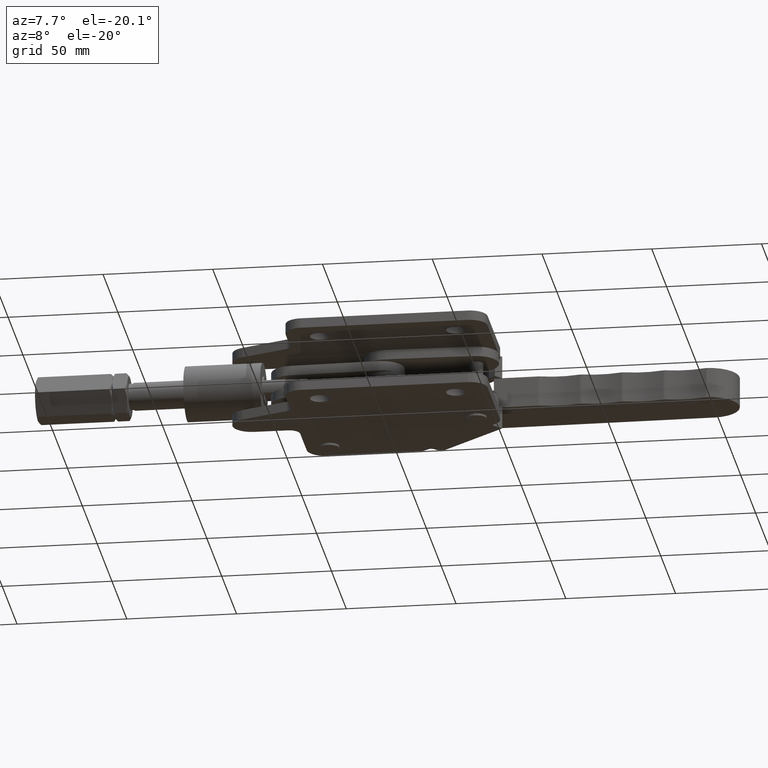
[diagram: clean part render]
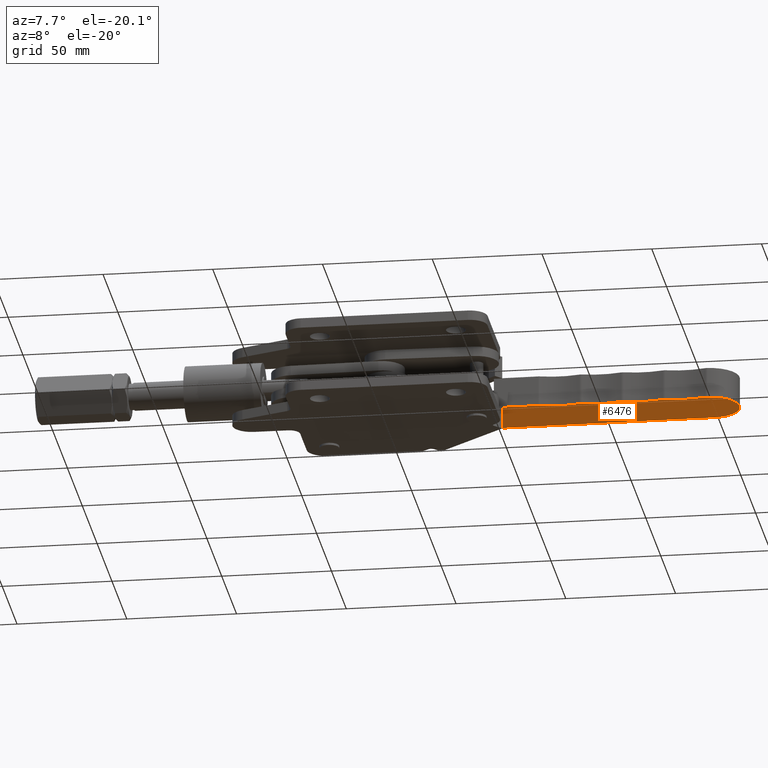
[diagram: same view with one face highlighted and labeled with its STEP entity id]
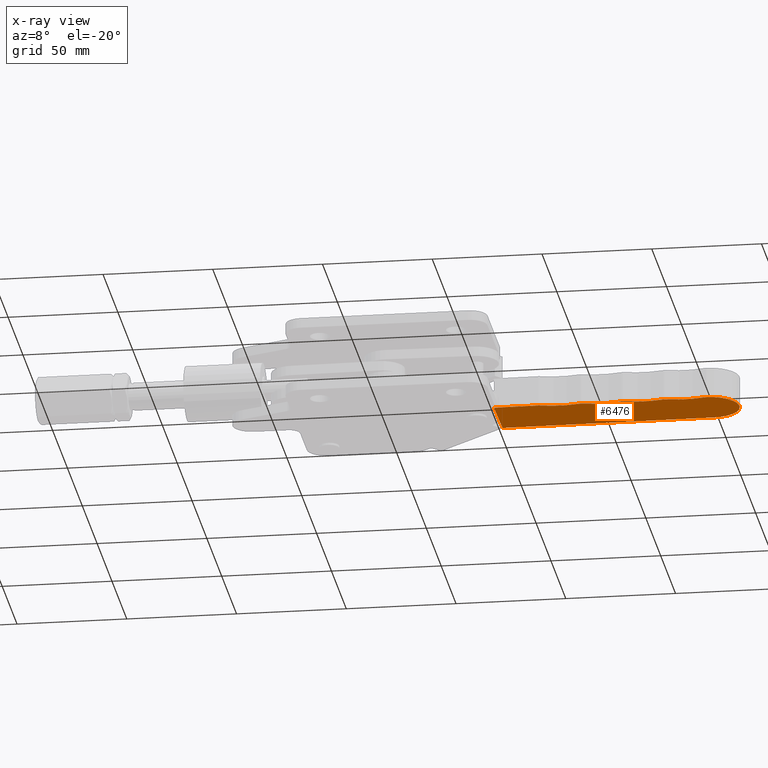
[diagram: x-ray of the same camera — body ghosted, the highlighted face saturated]
A machine part, auxiliary view. The second image highlights one B-rep face of the part: STEP entity #6476.
The next image is the same camera in x-ray: the body ghosted, the highlighted face saturated — about 0% of this face is hidden behind the body in this view.
In plain terms, the highlighted planar face has unit normal (0, 0, 1).
Its self-contained STEP definition (entity closure, byte-faithful):
#42 = VERTEX_POINT ( 'NONE', #2319 ) ;
#62 = AXIS2_PLACEMENT_3D ( 'NONE', #1163, #5013, #5044 ) ;
#107 = EDGE_CURVE ( 'NONE', #2254, #5272, #1745, .T. ) ;
#158 = EDGE_CURVE ( 'NONE', #7084, #2704, #5530, .T. ) ;
#186 = LINE ( 'NONE', #7910, #6771 ) ;
#371 = CARTESIAN_POINT ( 'NONE',  ( -5.069885523443646000, 71.95814195332458500, -24.19999999999998500 ) ) ;
#430 = DIRECTION ( 'NONE',  ( 0.9991457946206925300, 0.04132409819687534600, 0.0000000000000000000 ) ) ;
#686 = DIRECTION ( 'NONE',  ( 0.0000000000000000000, 0.0000000000000000000, 1.000000000000000000 ) ) ;
#700 = ORIENTED_EDGE ( 'NONE', *, *, #3980, .F. ) ;
#717 = EDGE_CURVE ( 'NONE', #4188, #7084, #5713, .T. ) ;
#736 = VERTEX_POINT ( 'NONE', #1936 ) ;
#807 = VERTEX_POINT ( 'NONE', #5716 ) ;
#882 = AXIS2_PLACEMENT_3D ( 'NONE', #5732, #2030, #6349 ) ;
#997 = CIRCLE ( 'NONE', #6024, 32.00000000000001400 ) ;
#1029 = EDGE_CURVE ( 'NONE', #7947, #807, #2130, .T. ) ;
#1031 = ORIENTED_EDGE ( 'NONE', *, *, #1964, .F. ) ;
#1163 = CARTESIAN_POINT ( 'NONE',  ( 27.54054772723067000, 15.74102818306557300, -24.19999999999998500 ) ) ;
#1177 = DIRECTION ( 'NONE',  ( 0.0000000000000000000, 0.0000000000000000000, 1.000000000000000000 ) ) ;
#1187 = CIRCLE ( 'NONE', #8001, 3.000000000000023500 ) ;
#1351 = CARTESIAN_POINT ( 'NONE',  ( 46.26508374010705900, 16.51546427542865900, -24.19999999999998500 ) ) ;
#1451 = CARTESIAN_POINT ( 'NONE',  ( 92.14929663985753900, 49.09104235534283600, -24.19999999999998500 ) ) ;
#1540 = EDGE_CURVE ( 'NONE', #736, #2254, #5382, .T. ) ;
#1570 = CARTESIAN_POINT ( 'NONE',  ( 73.47680954604851400, 51.39212259830702600, -24.19999999999998500 ) ) ;
#1634 = DIRECTION ( 'NONE',  ( -0.9991457946206924200, -0.04132409819687704600, 0.0000000000000000000 ) ) ;
#1671 = CARTESIAN_POINT ( 'NONE',  ( 65.50808792281705500, 17.31134391454688200, -24.19999999999998500 ) ) ;
#1745 = CIRCLE ( 'NONE', #4352, 32.00000000000004300 ) ;
#1797 = AXIS2_PLACEMENT_3D ( 'NONE', #1671, #6002, #2292 ) ;
#1936 = CARTESIAN_POINT ( 'NONE',  ( 72.79377626405703000, 48.47091299684186800, -24.19999999999998500 ) ) ;
#1964 = EDGE_CURVE ( 'NONE', #2408, #42, #997, .T. ) ;
#1982 = DIRECTION ( 'NONE',  ( 0.9983734417605477600, 0.05701290018231305200, 0.0000000000000000000 ) ) ;
#2020 = EDGE_CURVE ( 'NONE', #3836, #736, #3900, .T. ) ;
#2030 = DIRECTION ( 'NONE',  ( 0.0000000000000000000, -0.0000000000000000000, -1.000000000000000000 ) ) ;
#2031 = CARTESIAN_POINT ( 'NONE',  ( -3.954134872127824400, 44.98120549856585600, -24.19999999999998500 ) ) ;
#2117 = DIRECTION ( 'NONE',  ( 0.0000000000000000000, 0.0000000000000000000, 1.000000000000000000 ) ) ;
#2130 = CIRCLE ( 'NONE', #3730, 13.49999999999998800 ) ;
#2199 = DIRECTION ( 'NONE',  ( 0.9983734417605475400, 0.05701290018231407900, 0.0000000000000000000 ) ) ;
#2254 = VERTEX_POINT ( 'NONE', #4684 ) ;
#2292 = DIRECTION ( 'NONE',  ( 0.9983734417605476500, 0.05701290018231305200, 0.0000000000000000000 ) ) ;
#2319 = CARTESIAN_POINT ( 'NONE',  ( 53.79055065881017600, 47.61799387762509600, -24.19999999999998500 ) ) ;
#2331 = LINE ( 'NONE', #7210, #5441 ) ;
#2408 = VERTEX_POINT ( 'NONE', #4822 ) ;
#2481 = DIRECTION ( 'NONE',  ( 0.0000000000000000000, -0.0000000000000000000, -1.000000000000000000 ) ) ;
#2624 = CARTESIAN_POINT ( 'NONE',  ( 17.06495318257581000, 45.97779254263286200, -24.19999999999998500 ) ) ;
#2704 = VERTEX_POINT ( 'NONE', #5137 ) ;
#2766 = LINE ( 'NONE', #371, #5305 ) ;
#2774 = CARTESIAN_POINT ( 'NONE',  ( 55.43995101732876000, 47.68621213240659500, -24.19999999999998500 ) ) ;
#2820 = CARTESIAN_POINT ( 'NONE',  ( 92.03517602556951300, 62.46281008863262200, -24.19999999999998500 ) ) ;
#2892 = PLANE ( 'NONE',  #1797 ) ;
#2930 = CARTESIAN_POINT ( 'NONE',  ( -5.069885523443646000, 71.95814195332458500, -24.19999999999998500 ) ) ;
#3061 = AXIS2_PLACEMENT_3D ( 'NONE', #4392, #686, #5029 ) ;
#3080 = CIRCLE ( 'NONE', #7024, 3.000000000000058200 ) ;
#3106 = CARTESIAN_POINT ( 'NONE',  ( 84.23262393569355300, 18.08578000690998200, -24.19999999999998500 ) ) ;
#3244 = ORIENTED_EDGE ( 'NONE', *, *, #1540, .F. ) ;
#3288 = ORIENTED_EDGE ( 'NONE', *, *, #6840, .F. ) ;
#3334 = EDGE_CURVE ( 'NONE', #5272, #7947, #1187, .T. ) ;
#3339 = CARTESIAN_POINT ( 'NONE',  ( 92.89148470587302600, 51.99778570050840900, -24.19999999999998500 ) ) ;
#3424 = DIRECTION ( 'NONE',  ( 0.9983734417605476500, 0.05701290018231280900, 0.0000000000000000000 ) ) ;
#3610 = FACE_OUTER_BOUND ( 'NONE', #7420, .T. ) ;
#3730 = AXIS2_PLACEMENT_3D ( 'NONE', #2820, #7146, #3424 ) ;
#3741 = VERTEX_POINT ( 'NONE', #2031 ) ;
#3836 = VERTEX_POINT ( 'NONE', #2774 ) ;
#3865 = ORIENTED_EDGE ( 'NONE', *, *, #7917, .F. ) ;
#3900 = CIRCLE ( 'NONE', #882, 31.99999999999996100 ) ;
#3979 = DIRECTION ( 'NONE',  ( 0.9983734417605476500, 0.05701290018231230900, 0.0000000000000000000 ) ) ;
#3980 = EDGE_CURVE ( 'NONE', #3741, #4188, #2331, .T. ) ;
#4188 = VERTEX_POINT ( 'NONE', #5477 ) ;
#4352 = AXIS2_PLACEMENT_3D ( 'NONE', #3106, #2481, #6825 ) ;
#4392 = CARTESIAN_POINT ( 'NONE',  ( 16.08286619401535600, 48.81248920134265000, -24.19999999999998500 ) ) ;
#4654 = AXIS2_PLACEMENT_3D ( 'NONE', #5816, #2117, #6426 ) ;
#4684 = CARTESIAN_POINT ( 'NONE',  ( 74.39873649373248600, 48.53729323333013200, -24.19999999999998500 ) ) ;
#4763 = CARTESIAN_POINT ( 'NONE',  ( 93.13614432881634300, 49.00777873247281500, -24.19999999999998500 ) ) ;
#4822 = CARTESIAN_POINT ( 'NONE',  ( 36.43119629814405200, 46.96697750184813500, -24.19999999999998500 ) ) ;
#4843 = DIRECTION ( 'NONE',  ( 0.04132409819688219500, -0.9991457946206922000, -0.0000000000000000000 ) ) ;
#4898 = CARTESIAN_POINT ( 'NONE',  ( 54.49606318243919400, 50.53385602783100000, -24.19999999999998500 ) ) ;
#4971 = ORIENTED_EDGE ( 'NONE', *, *, #7149, .F. ) ;
#5013 = DIRECTION ( 'NONE',  ( 0.0000000000000000000, -0.0000000000000000000, -1.000000000000000000 ) ) ;
#5029 = DIRECTION ( 'NONE',  ( 0.9983734417605476500, 0.05701290018231224000, 0.0000000000000000000 ) ) ;
#5044 = DIRECTION ( 'NONE',  ( 0.9983734417605476500, 0.05701290018231308700, 0.0000000000000000000 ) ) ;
#5137 = CARTESIAN_POINT ( 'NONE',  ( 34.82623606847322900, 46.90059726536005500, -24.19999999999998500 ) ) ;
#5209 = ORIENTED_EDGE ( 'NONE', *, *, #6882, .F. ) ;
#5272 = VERTEX_POINT ( 'NONE', #1451 ) ;
#5305 = VECTOR ( 'NONE', #1634, 1000.000000000000100 ) ;
#5382 = CIRCLE ( 'NONE', #7579, 3.000000000000052000 ) ;
#5441 = VECTOR ( 'NONE', #430, 1000.000000000000000 ) ;
#5464 = ORIENTED_EDGE ( 'NONE', *, *, #3334, .F. ) ;
#5477 = CARTESIAN_POINT ( 'NONE',  ( 16.20683848860610600, 45.81505181748055100, -24.19999999999998500 ) ) ;
#5497 = ORIENTED_EDGE ( 'NONE', *, *, #158, .F. ) ;
#5516 = DIRECTION ( 'NONE',  ( 0.9983734417605476500, 0.05701290018231396100, 0.0000000000000000000 ) ) ;
#5530 = CIRCLE ( 'NONE', #62, 31.99999999999999600 ) ;
#5681 = DIRECTION ( 'NONE',  ( 0.0000000000000000000, -0.0000000000000000000, -1.000000000000000000 ) ) ;
#5713 = CIRCLE ( 'NONE', #3061, 3.000000000000027100 ) ;
#5716 = CARTESIAN_POINT ( 'NONE',  ( 91.47730069991172300, 75.95127831601195100, -24.19999999999998500 ) ) ;
#5732 = CARTESIAN_POINT ( 'NONE',  ( 65.50808792281705500, 17.31134391454688200, -24.19999999999998500 ) ) ;
#5816 = CARTESIAN_POINT ( 'NONE',  ( 35.50926935046234000, 49.82180686682572500, -24.19999999999998500 ) ) ;
#5829 = ORIENTED_EDGE ( 'NONE', *, *, #107, .F. ) ;
#5900 = DIRECTION ( 'NONE',  ( 0.0000000000000000000, 0.0000000000000000000, 1.000000000000000000 ) ) ;
#5992 = VERTEX_POINT ( 'NONE', #2930 ) ;
#6002 = DIRECTION ( 'NONE',  ( 0.0000000000000000000, -0.0000000000000000000, 1.000000000000000000 ) ) ;
#6024 = AXIS2_PLACEMENT_3D ( 'NONE', #1351, #5681, #1982 ) ;
#6328 = ORIENTED_EDGE ( 'NONE', *, *, #1029, .F. ) ;
#6349 = DIRECTION ( 'NONE',  ( 0.9983734417605476500, 0.05701290018231303800, 0.0000000000000000000 ) ) ;
#6426 = DIRECTION ( 'NONE',  ( 0.9983734417605476500, 0.05701290018231256600, 0.0000000000000000000 ) ) ;
#6475 = ORIENTED_EDGE ( 'NONE', *, *, #2020, .F. ) ;
#6476 = ADVANCED_FACE ( 'NONE', ( #3610 ), #2892, .F. ) ;
#6771 = VECTOR ( 'NONE', #4843, 1000.000000000000100 ) ;
#6825 = DIRECTION ( 'NONE',  ( 0.9983734417605476500, 0.05701290018231310700, 0.0000000000000000000 ) ) ;
#6840 = EDGE_CURVE ( 'NONE', #5992, #3741, #186, .T. ) ;
#6863 = ORIENTED_EDGE ( 'NONE', *, *, #717, .F. ) ;
#6882 = EDGE_CURVE ( 'NONE', #42, #3836, #3080, .T. ) ;
#7024 = AXIS2_PLACEMENT_3D ( 'NONE', #4898, #1177, #5516 ) ;
#7084 = VERTEX_POINT ( 'NONE', #2624 ) ;
#7146 = DIRECTION ( 'NONE',  ( 0.0000000000000000000, 0.0000000000000000000, 1.000000000000000000 ) ) ;
#7149 = EDGE_CURVE ( 'NONE', #2704, #2408, #7618, .T. ) ;
#7210 = CARTESIAN_POINT ( 'NONE',  ( 16.20683848860610600, 45.81505181748055100, -24.19999999999998500 ) ) ;
#7420 = EDGE_LOOP ( 'NONE', ( #6475, #5209, #1031, #4971, #5497, #6863, #700, #3288, #3865, #6328, #5464, #5829, #3244 ) ) ;
#7579 = AXIS2_PLACEMENT_3D ( 'NONE', #1570, #5900, #2199 ) ;
#7618 = CIRCLE ( 'NONE', #4654, 3.000000000000009800 ) ;
#7686 = DIRECTION ( 'NONE',  ( 0.0000000000000000000, 0.0000000000000000000, 1.000000000000000000 ) ) ;
#7910 = CARTESIAN_POINT ( 'NONE',  ( -3.954134872127824400, 44.98120549856585600, -24.19999999999998500 ) ) ;
#7917 = EDGE_CURVE ( 'NONE', #807, #5992, #2766, .T. ) ;
#7947 = VERTEX_POINT ( 'NONE', #4763 ) ;
#8001 = AXIS2_PLACEMENT_3D ( 'NONE', #3339, #7686, #3979 ) ;